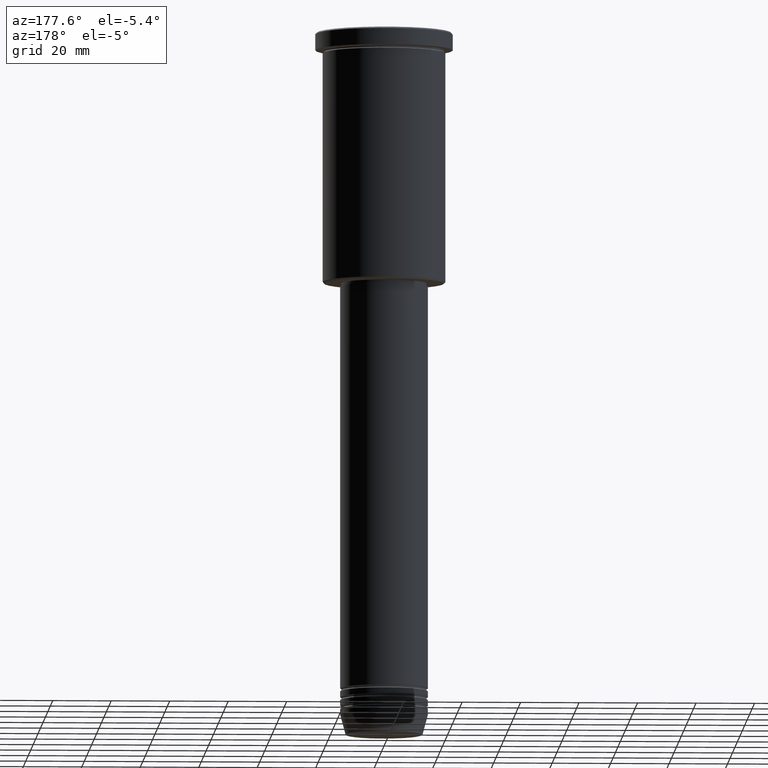
[diagram: clean part render]
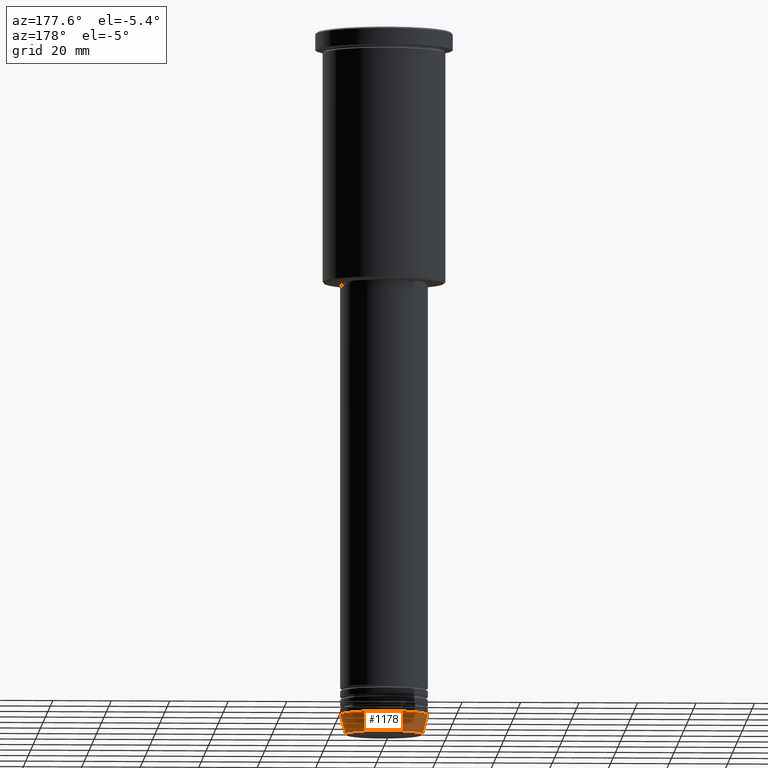
[diagram: same view with one face highlighted and labeled with its STEP entity id]
A machine part, auxiliary view. The second image highlights one B-rep face of the part: STEP entity #1178.
In plain terms, the highlighted conical surface has half-angle 15 deg.
Its self-contained STEP definition (entity closure, byte-faithful):
#2 = VECTOR ( 'NONE', #872, 1000.000000000000000 ) ;
#23 = EDGE_CURVE ( 'NONE', #740, #986, #711, .T. ) ;
#29 = CARTESIAN_POINT ( 'NONE',  ( -15.00000000000000000, 1.836970198721029589E-15, -234.0000000000000000 ) ) ;
#40 = EDGE_LOOP ( 'NONE', ( #78, #275, #764, #918 ) ) ;
#63 = CARTESIAN_POINT ( 'NONE',  ( 0.000000000000000000, 0.000000000000000000, -234.0000000000000000 ) ) ;
#78 = ORIENTED_EDGE ( 'NONE', *, *, #616, .T. ) ;
#103 = EDGE_CURVE ( 'NONE', #1070, #1169, #1068, .T. ) ;
#244 = CARTESIAN_POINT ( 'NONE',  ( -15.00000000000000000, 1.836970198721029589E-15, -234.0000000000000000 ) ) ;
#246 = CARTESIAN_POINT ( 'NONE',  ( 0.000000000000000000, 0.000000000000000000, -234.0000000000000000 ) ) ;
#250 = DIRECTION ( 'NONE',  ( -0.000000000000000000, -0.000000000000000000, 1.000000000000000000 ) ) ;
#272 = CARTESIAN_POINT ( 'NONE',  ( -13.22365507213719305, 1.728200442216588583E-15, -240.6294095225512422 ) ) ;
#275 = ORIENTED_EDGE ( 'NONE', *, *, #23, .T. ) ;
#285 = AXIS2_PLACEMENT_3D ( 'NONE', #246, #697, #1138 ) ;
#333 = DIRECTION ( 'NONE',  ( 1.000000000000000000, 0.000000000000000000, 0.000000000000000000 ) ) ;
#349 = DIRECTION ( 'NONE',  ( 1.000000000000000000, 0.000000000000000000, 0.000000000000000000 ) ) ;
#354 = DIRECTION ( 'NONE',  ( -0.000000000000000000, -0.000000000000000000, 1.000000000000000000 ) ) ;
#421 = FACE_OUTER_BOUND ( 'NONE', #40, .T. ) ;
#424 = CARTESIAN_POINT ( 'NONE',  ( 15.00000000000000000, 0.000000000000000000, -234.0000000000000000 ) ) ;
#616 = EDGE_CURVE ( 'NONE', #1070, #740, #1081, .T. ) ;
#697 = DIRECTION ( 'NONE',  ( -0.000000000000000000, -0.000000000000000000, 1.000000000000000000 ) ) ;
#711 = LINE ( 'NONE', #244, #952 ) ;
#722 = CIRCLE ( 'NONE', #285, 15.00000000000000000 ) ;
#740 = VERTEX_POINT ( 'NONE', #272 ) ;
#764 = ORIENTED_EDGE ( 'NONE', *, *, #1108, .F. ) ;
#799 = DIRECTION ( 'NONE',  ( -0.2588190451025213501, 3.169619151431772337E-17, 0.9659258262890680902 ) ) ;
#809 = CARTESIAN_POINT ( 'NONE',  ( 0.000000000000000000, 0.000000000000000000, -240.6294095225512422 ) ) ;
#872 = DIRECTION ( 'NONE',  ( 0.2588190451025213501, 0.000000000000000000, 0.9659258262890680902 ) ) ;
#883 = CARTESIAN_POINT ( 'NONE',  ( 15.00000000000000000, 0.000000000000000000, -234.0000000000000000 ) ) ;
#918 = ORIENTED_EDGE ( 'NONE', *, *, #103, .F. ) ;
#934 = AXIS2_PLACEMENT_3D ( 'NONE', #63, #250, #333 ) ;
#952 = VECTOR ( 'NONE', #799, 1000.000000000000000 ) ;
#954 = CONICAL_SURFACE ( 'NONE', #934, 15.00000000000000000, 0.2617993877991500740 ) ;
#986 = VERTEX_POINT ( 'NONE', #29 ) ;
#1024 = CARTESIAN_POINT ( 'NONE',  ( 13.22365507213719305, 0.000000000000000000, -240.6294095225512422 ) ) ;
#1068 = LINE ( 'NONE', #424, #2 ) ;
#1070 = VERTEX_POINT ( 'NONE', #1024 ) ;
#1081 = CIRCLE ( 'NONE', #1122, 13.22365507213719305 ) ;
#1108 = EDGE_CURVE ( 'NONE', #1169, #986, #722, .T. ) ;
#1122 = AXIS2_PLACEMENT_3D ( 'NONE', #809, #354, #349 ) ;
#1138 = DIRECTION ( 'NONE',  ( 1.000000000000000000, 0.000000000000000000, 0.000000000000000000 ) ) ;
#1169 = VERTEX_POINT ( 'NONE', #883 ) ;
#1178 = ADVANCED_FACE ( 'NONE', ( #421 ), #954, .T. ) ;